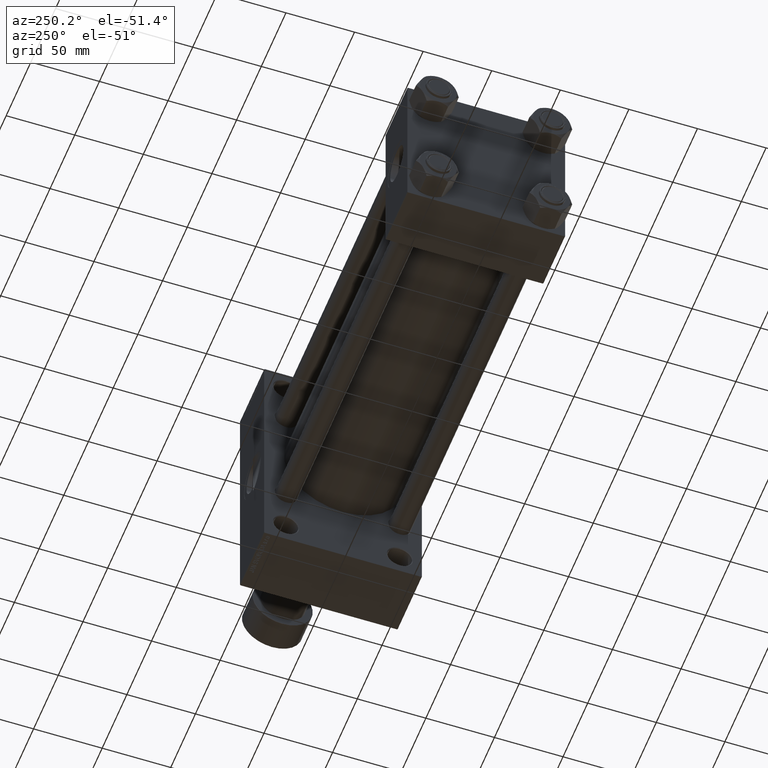
[diagram: clean part render]
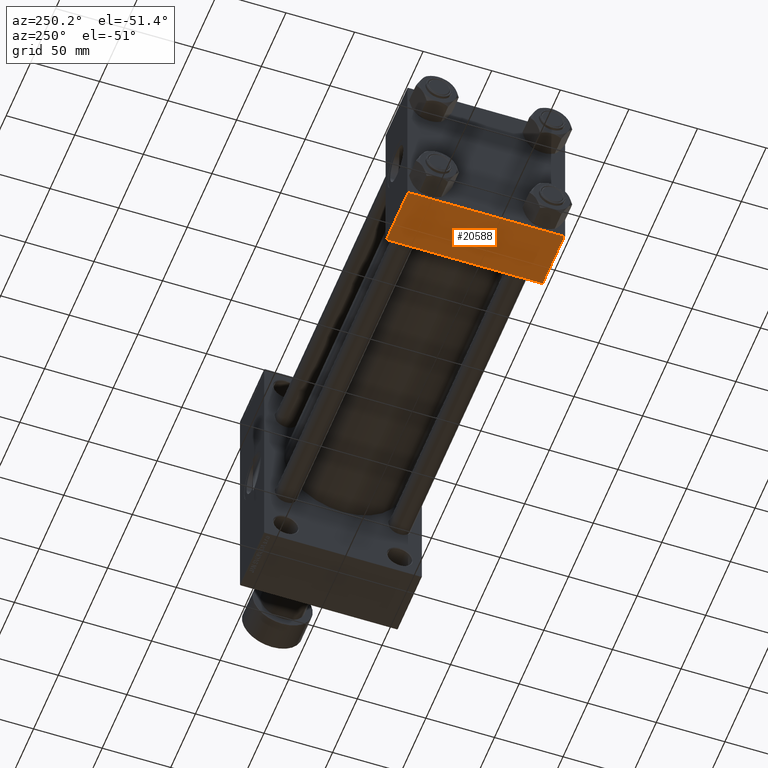
[diagram: same view with one face highlighted and labeled with its STEP entity id]
A machine part, auxiliary view. The second image highlights one B-rep face of the part: STEP entity #20588.
In plain terms, the highlighted planar face has unit normal (0, 0, -1).
Its self-contained STEP definition (entity closure, byte-faithful):
#287 = EDGE_CURVE ( 'NONE', #34702, #8631, #9166, .T. ) ;
#753 = VERTEX_POINT ( 'NONE', #26143 ) ;
#2899 = EDGE_LOOP ( 'NONE', ( #41193, #46680, #33644, #22991 ) ) ;
#4214 = CARTESIAN_POINT ( 'NONE',  ( 0.000000000000000000, -57.00000000000000711, -57.50000000000000711 ) ) ;
#5638 = DIRECTION ( 'NONE',  ( 0.000000000000000000, 1.000000000000000000, 1.206764157201257045E-16 ) ) ;
#5881 = LINE ( 'NONE', #24699, #32672 ) ;
#7403 = LINE ( 'NONE', #4214, #21874 ) ;
#7915 = AXIS2_PLACEMENT_3D ( 'NONE', #12725, #42081, #5638 ) ;
#8631 = VERTEX_POINT ( 'NONE', #35664 ) ;
#9166 = LINE ( 'NONE', #39473, #45593 ) ;
#12725 = CARTESIAN_POINT ( 'NONE',  ( 44.00000000000000000, 57.49999999999999289, -57.49999999999999289 ) ) ;
#12797 = EDGE_CURVE ( 'NONE', #34702, #753, #5881, .T. ) ;
#17057 = DIRECTION ( 'NONE',  ( 0.000000000000000000, -1.000000000000000000, -1.206764157201257045E-16 ) ) ;
#17296 = CARTESIAN_POINT ( 'NONE',  ( 44.00000000000000000, 57.49999999999999289, -57.49999999999999289 ) ) ;
#17702 = DIRECTION ( 'NONE',  ( 1.000000000000000000, 0.000000000000000000, 0.000000000000000000 ) ) ;
#17820 = EDGE_CURVE ( 'NONE', #23608, #753, #7403, .T. ) ;
#19710 = EDGE_CURVE ( 'NONE', #8631, #23608, #35637, .T. ) ;
#20588 = ADVANCED_FACE ( 'NONE', ( #39131 ), #39372, .T. ) ;
#20787 = DIRECTION ( 'NONE',  ( 0.000000000000000000, -1.000000000000000000, -1.206764157201257045E-16 ) ) ;
#21874 = VECTOR ( 'NONE', #22317, 1000.000000000000000 ) ;
#22317 = DIRECTION ( 'NONE',  ( -1.000000000000000000, 0.000000000000000000, 0.000000000000000000 ) ) ;
#22991 = ORIENTED_EDGE ( 'NONE', *, *, #17820, .T. ) ;
#23608 = VERTEX_POINT ( 'NONE', #44458 ) ;
#24699 = CARTESIAN_POINT ( 'NONE',  ( 0.000000000000000000, 57.49999999999999289, -57.49999999999999289 ) ) ;
#25042 = CARTESIAN_POINT ( 'NONE',  ( 0.000000000000000000, 57.00000000000002132, -57.49999999999999289 ) ) ;
#26143 = CARTESIAN_POINT ( 'NONE',  ( 0.000000000000000000, -57.00000000000000711, -57.50000000000000711 ) ) ;
#28177 = VECTOR ( 'NONE', #17057, 1000.000000000000000 ) ;
#32672 = VECTOR ( 'NONE', #20787, 1000.000000000000000 ) ;
#33644 = ORIENTED_EDGE ( 'NONE', *, *, #19710, .T. ) ;
#34702 = VERTEX_POINT ( 'NONE', #25042 ) ;
#35637 = LINE ( 'NONE', #17296, #28177 ) ;
#35664 = CARTESIAN_POINT ( 'NONE',  ( 44.00000000000000000, 57.00000000000002132, -57.49999999999999289 ) ) ;
#39131 = FACE_OUTER_BOUND ( 'NONE', #2899, .T. ) ;
#39372 = PLANE ( 'NONE',  #7915 ) ;
#39473 = CARTESIAN_POINT ( 'NONE',  ( 44.00000000000000000, 57.00000000000002132, -57.49999999999999289 ) ) ;
#41193 = ORIENTED_EDGE ( 'NONE', *, *, #12797, .F. ) ;
#42081 = DIRECTION ( 'NONE',  ( 0.000000000000000000, 1.206764157201257045E-16, -1.000000000000000000 ) ) ;
#44458 = CARTESIAN_POINT ( 'NONE',  ( 44.00000000000000000, -57.00000000000000711, -57.50000000000000711 ) ) ;
#45593 = VECTOR ( 'NONE', #17702, 1000.000000000000000 ) ;
#46680 = ORIENTED_EDGE ( 'NONE', *, *, #287, .T. ) ;